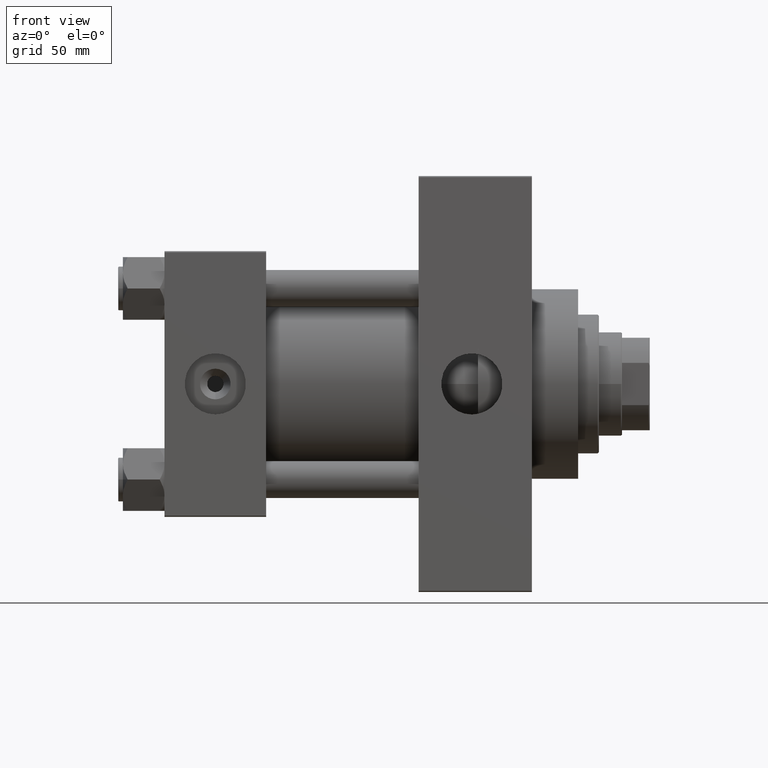
[diagram: clean part render]
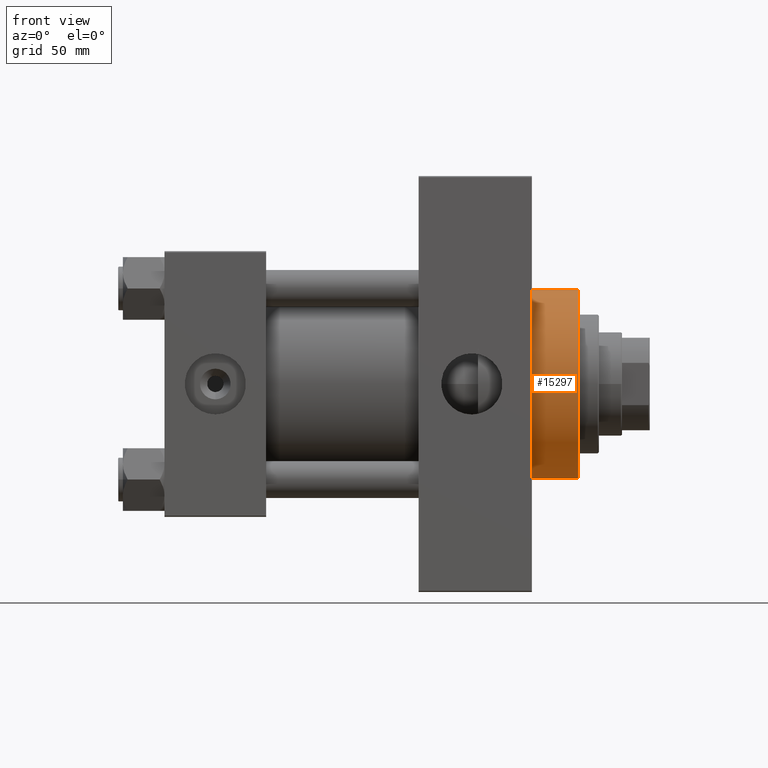
[diagram: same view with one face highlighted and labeled with its STEP entity id]
A machine part, front view. The second image highlights one B-rep face of the part: STEP entity #15297.
In plain terms, the highlighted cylindrical surface (partial cylindrical patch) has radius 41 mm, axis along (-1, -0, -0).
Its self-contained STEP definition (entity closure, byte-faithful):
#236 = DIRECTION ( 'NONE',  ( 1.000000000000000000, 0.000000000000000000, 0.000000000000000000 ) ) ;
#368 = EDGE_CURVE ( 'NONE', #18154, #31692, #41030, .T. ) ;
#2094 = CARTESIAN_POINT ( 'NONE',  ( 179.0000000000000000, 5.021051876504148963E-15, -41.00000000000000000 ) ) ;
#3724 = ORIENTED_EDGE ( 'NONE', *, *, #368, .T. ) ;
#4872 = DIRECTION ( 'NONE',  ( 0.000000000000000000, 0.000000000000000000, -1.000000000000000000 ) ) ;
#5495 = VERTEX_POINT ( 'NONE', #36559 ) ;
#5961 = CYLINDRICAL_SURFACE ( 'NONE', #25673, 41.00000000000000000 ) ;
#6936 = DIRECTION ( 'NONE',  ( -1.000000000000000000, -0.000000000000000000, -0.000000000000000000 ) ) ;
#9138 = CARTESIAN_POINT ( 'NONE',  ( 179.0000000000000000, 0.000000000000000000, 0.000000000000000000 ) ) ;
#9680 = CIRCLE ( 'NONE', #29770, 41.00000000000000000 ) ;
#10213 = EDGE_CURVE ( 'NONE', #5495, #18154, #31037, .T. ) ;
#15297 = ADVANCED_FACE ( 'NONE', ( #32373 ), #5961, .T. ) ;
#15932 = CARTESIAN_POINT ( 'NONE',  ( 179.0000000000000000, 0.000000000000000000, 41.00000000000000000 ) ) ;
#18154 = VERTEX_POINT ( 'NONE', #19616 ) ;
#19616 = CARTESIAN_POINT ( 'NONE',  ( 159.0000000000000000, 0.000000000000000000, 41.00000000000000000 ) ) ;
#23844 = DIRECTION ( 'NONE',  ( 0.000000000000000000, 0.000000000000000000, -1.000000000000000000 ) ) ;
#25673 = AXIS2_PLACEMENT_3D ( 'NONE', #40210, #36417, #47756 ) ;
#26038 = CARTESIAN_POINT ( 'NONE',  ( 179.0000000000000000, 5.021051876504148963E-15, -41.00000000000000000 ) ) ;
#28745 = DIRECTION ( 'NONE',  ( 1.000000000000000000, 0.000000000000000000, 0.000000000000000000 ) ) ;
#29770 = AXIS2_PLACEMENT_3D ( 'NONE', #9138, #28745, #4872 ) ;
#30581 = EDGE_CURVE ( 'NONE', #37533, #31692, #36887, .T. ) ;
#31037 = LINE ( 'NONE', #15932, #40807 ) ;
#31179 = VECTOR ( 'NONE', #6936, 1000.000000000000000 ) ;
#31692 = VERTEX_POINT ( 'NONE', #36588 ) ;
#32373 = FACE_OUTER_BOUND ( 'NONE', #38149, .T. ) ;
#34518 = ORIENTED_EDGE ( 'NONE', *, *, #39818, .F. ) ;
#36417 = DIRECTION ( 'NONE',  ( -1.000000000000000000, -0.000000000000000000, -0.000000000000000000 ) ) ;
#36559 = CARTESIAN_POINT ( 'NONE',  ( 179.0000000000000000, 0.000000000000000000, 41.00000000000000000 ) ) ;
#36588 = CARTESIAN_POINT ( 'NONE',  ( 159.0000000000000000, 5.021051876504148963E-15, -41.00000000000000000 ) ) ;
#36887 = LINE ( 'NONE', #26038, #31179 ) ;
#37533 = VERTEX_POINT ( 'NONE', #2094 ) ;
#37929 = ORIENTED_EDGE ( 'NONE', *, *, #10213, .T. ) ;
#38149 = EDGE_LOOP ( 'NONE', ( #43014, #34518, #37929, #3724 ) ) ;
#38865 = DIRECTION ( 'NONE',  ( -1.000000000000000000, -0.000000000000000000, -0.000000000000000000 ) ) ;
#39818 = EDGE_CURVE ( 'NONE', #5495, #37533, #9680, .T. ) ;
#40210 = CARTESIAN_POINT ( 'NONE',  ( 179.0000000000000000, 0.000000000000000000, 0.000000000000000000 ) ) ;
#40807 = VECTOR ( 'NONE', #38865, 1000.000000000000000 ) ;
#41030 = CIRCLE ( 'NONE', #46676, 41.00000000000000000 ) ;
#43014 = ORIENTED_EDGE ( 'NONE', *, *, #30581, .F. ) ;
#46676 = AXIS2_PLACEMENT_3D ( 'NONE', #47034, #236, #23844 ) ;
#47034 = CARTESIAN_POINT ( 'NONE',  ( 159.0000000000000000, 0.000000000000000000, 0.000000000000000000 ) ) ;
#47756 = DIRECTION ( 'NONE',  ( 0.000000000000000000, 0.000000000000000000, 1.000000000000000000 ) ) ;